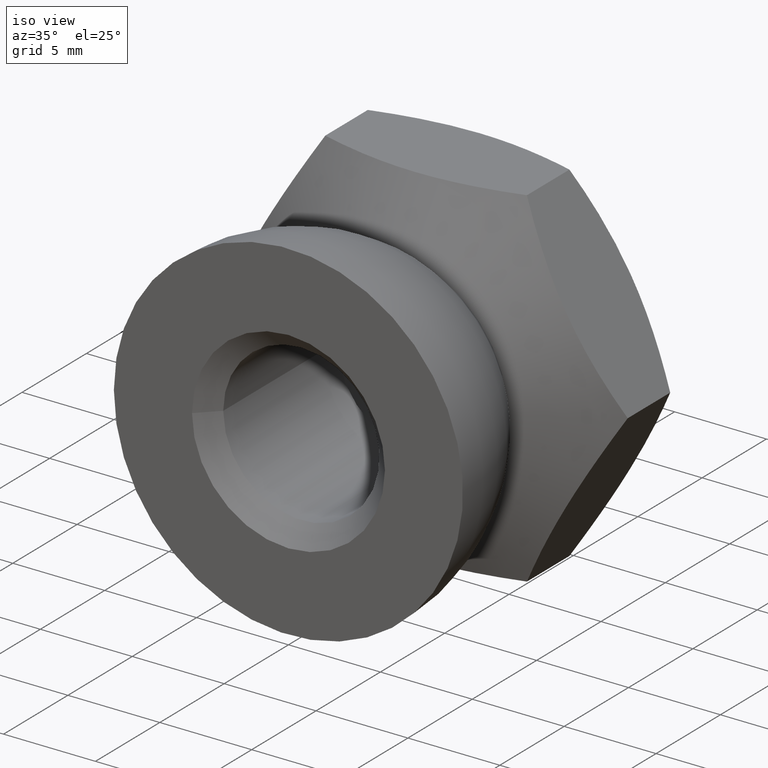
[diagram: clean part render]
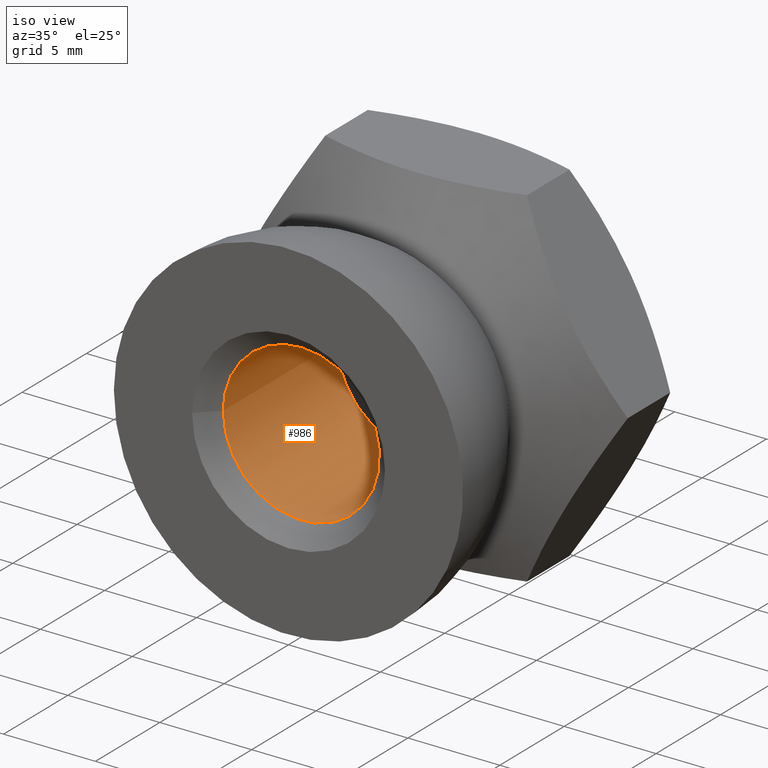
[diagram: same view with one face highlighted and labeled with its STEP entity id]
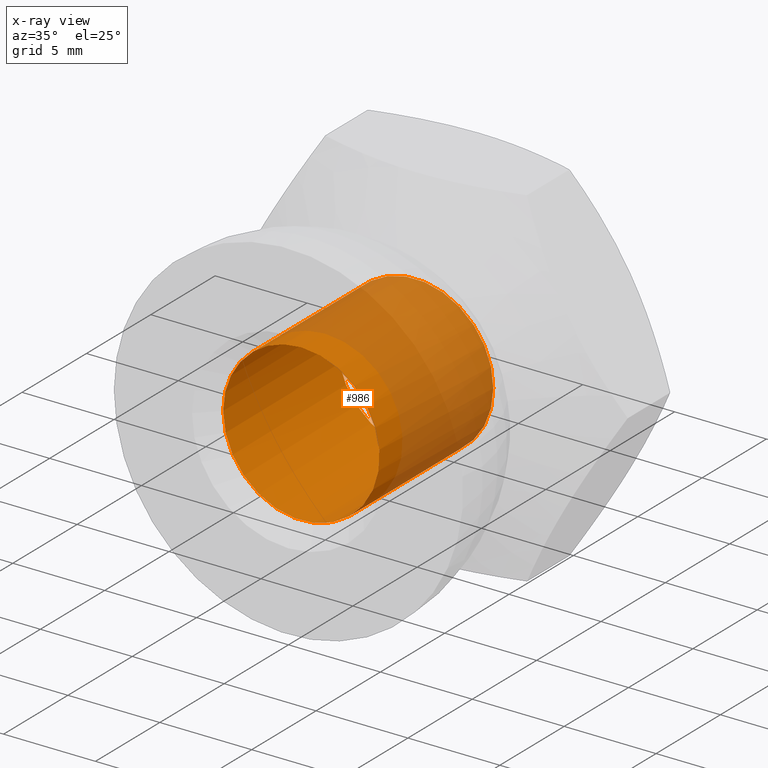
[diagram: x-ray of the same camera — body ghosted, the highlighted face saturated]
A machine part, iso view. The second image highlights one B-rep face of the part: STEP entity #986.
The next image is the same camera in x-ray: the body ghosted, the highlighted face saturated — about 44% of this face is hidden behind the body in this view.
In plain terms, the highlighted cylindrical surface (bore or boss wall) has radius 4.25 mm, axis along (-0, -1, -0).
Its self-contained STEP definition (entity closure, byte-faithful):
#163 = CIRCLE ( 'NONE', #4290, 4.249999999999997335 ) ;
#986 = ADVANCED_FACE ( 'NONE', ( #15087, #11328 ), #1736, .F. ) ;
#1736 = CYLINDRICAL_SURFACE ( 'NONE', #4576, 4.249999999999997335 ) ;
#1857 = DIRECTION ( 'NONE',  ( -1.000000000000000000, 0.000000000000000000, 0.000000000000000000 ) ) ;
#3127 = DIRECTION ( 'NONE',  ( -3.130249737586675703E-17, 1.000000000000000000, 0.000000000000000000 ) ) ;
#3306 = CARTESIAN_POINT ( 'NONE',  ( 0.000000000000000000, 1.000000000000004219, 4.249999999999997335 ) ) ;
#4161 = DIRECTION ( 'NONE',  ( 0.000000000000000000, -1.000000000000000000, 0.000000000000000000 ) ) ;
#4290 = AXIS2_PLACEMENT_3D ( 'NONE', #11279, #4161, #6368 ) ;
#4401 = CARTESIAN_POINT ( 'NONE',  ( 0.000000000000000000, 9.847520861406774628, 0.000000000000000000 ) ) ;
#4576 = AXIS2_PLACEMENT_3D ( 'NONE', #5489, #5441, #6638 ) ;
#4823 = EDGE_CURVE ( 'NONE', #10023, #10023, #8299, .T. ) ;
#5441 = DIRECTION ( 'NONE',  ( -0.000000000000000000, -1.000000000000000000, -0.000000000000000000 ) ) ;
#5489 = CARTESIAN_POINT ( 'NONE',  ( 0.000000000000000000, 0.000000000000000000, 0.000000000000000000 ) ) ;
#6368 = DIRECTION ( 'NONE',  ( 0.000000000000000000, 0.000000000000000000, 1.000000000000000000 ) ) ;
#6638 = DIRECTION ( 'NONE',  ( 0.000000000000000000, 0.000000000000000000, -1.000000000000000000 ) ) ;
#7072 = ORIENTED_EDGE ( 'NONE', *, *, #8222, .T. ) ;
#8222 = EDGE_CURVE ( 'NONE', #10421, #10421, #163, .T. ) ;
#8299 = CIRCLE ( 'NONE', #9068, 4.249999999999997335 ) ;
#9068 = AXIS2_PLACEMENT_3D ( 'NONE', #4401, #3127, #1857 ) ;
#9176 = ORIENTED_EDGE ( 'NONE', *, *, #4823, .T. ) ;
#10023 = VERTEX_POINT ( 'NONE', #15436 ) ;
#10421 = VERTEX_POINT ( 'NONE', #3306 ) ;
#11279 = CARTESIAN_POINT ( 'NONE',  ( 0.000000000000000000, 1.000000000000004219, 0.000000000000000000 ) ) ;
#11328 = FACE_OUTER_BOUND ( 'NONE', #12689, .T. ) ;
#12689 = EDGE_LOOP ( 'NONE', ( #9176 ) ) ;
#13851 = EDGE_LOOP ( 'NONE', ( #7072 ) ) ;
#15087 = FACE_OUTER_BOUND ( 'NONE', #13851, .T. ) ;
#15436 = CARTESIAN_POINT ( 'NONE',  ( -4.249999999999997335, 9.847520861406774628, 0.000000000000000000 ) ) ;